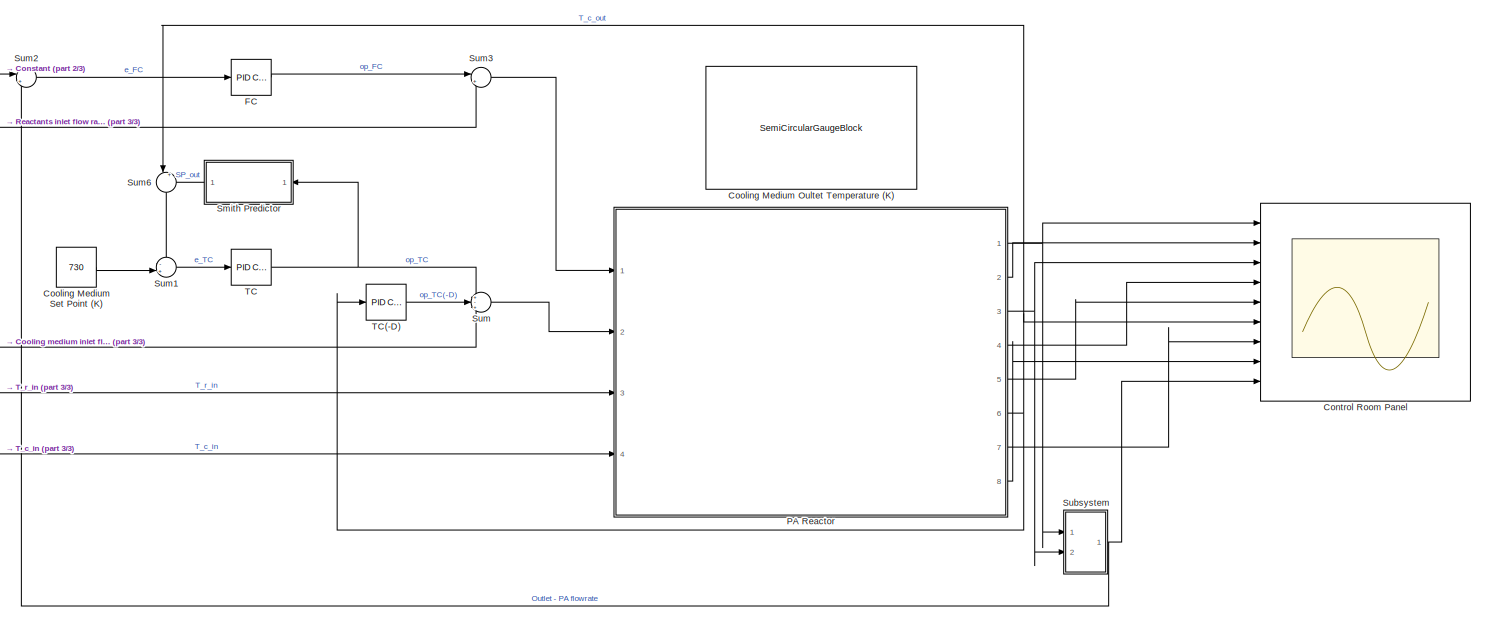
[diagram: root canvas - part 1/3, most of the canvas]
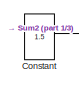
[diagram: root canvas - part 2/3, top left region]
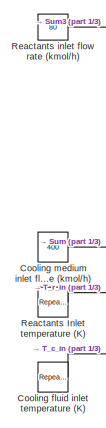
[diagram: root canvas - part 3/3, middle left region]
MODEL slx_5251da87055f
KIND model
CONFIG AbsTol = auto
CONFIG EnableMultiTasking = off
CONFIG FixedStep = auto
CONFIG MaxStep = auto
CONFIG MinStep = auto
CONFIG RelTol = 1e-3
CONFIG SampleTimeConstraint = Unconstrained
CONFIG Solver = ode2
CONFIG SolverName = ode2
CONFIG StartTime = 0
CONFIG StopTime = 120
BLOCK [Constant] Constant
  Value = 1.5
BLOCK [Scope] Control Room Panel
  Floating = off
  NumInputPorts = 9
  Ports = [9]
  ScopeSpecificationString = Simulink.scopes.TimeScopeBlockCfg('CurrentConfiguration', extmgr.ConfigurationSet(extmgr.Configuration('Core','General UI',true),extmgr.Configuration('Core','Source UI',true),extmgr.Configuration('Sources','WiredSimulink',true,'DataLoggingVariableName','ControlPanel','DataLogging',true),extmgr.Configuration('Visuals','Time Domain',true,'SerializedDisplays',{struct('MinYLimReal','64.97373','MaxYLim...<+7310ch>
BLOCK [SemiCircularGaugeBlock] Cooling Medium Oultet Temperature (K)
  ScaleMax = 780
  ScaleMin = 680
  WebBlockId = 63
BLOCK [Constant] Cooling Medium Set Point (K) 
  SampleTime = -1
  Value = 730
  VectorParams1D = off
BLOCK [Reference] Cooling fluid inlet temperature (K)  REF=simulink/Sources/Repeating
Sequence
Stair
  Ports = [0, 1]
  SourceBlock = simulink/Sources/Repeating\nSequence\nStair
  SourceProductBaseCode = SL
  SourceProductName = Simulink
  SourceType = Repeating Sequence Stair
BLOCK [Constant] Cooling medium inlet flow rate  (kmol//h)
  Value = 400
BLOCK [Reference] FC  REF=simulink/Continuous/PID Controller
  Ports = [1, 1]
  SourceBlock = simulink/Continuous/PID Controller
  SourceProductBaseCode = SL
  SourceProductName = Simulink
  SourceType = PID 1dof
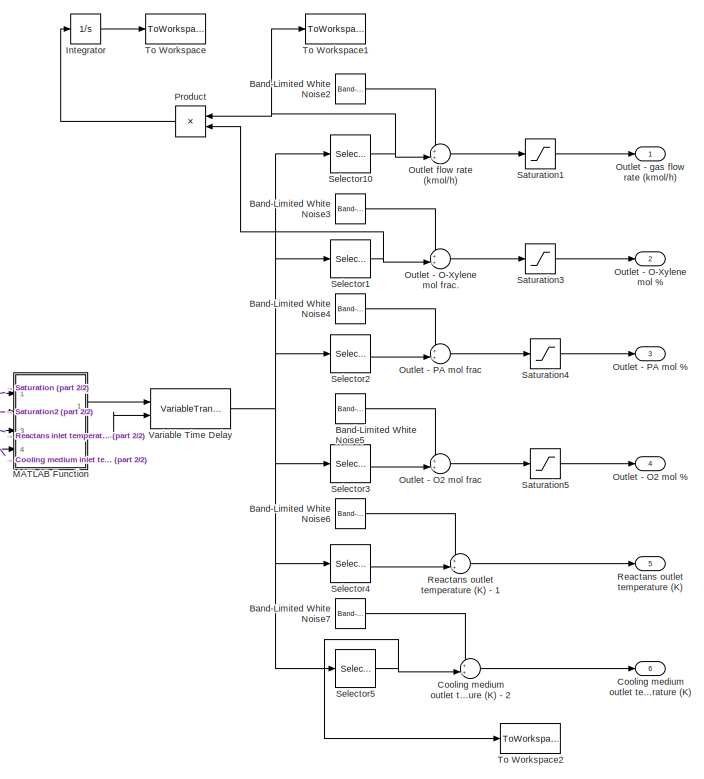
[diagram: PA Reactor - part 1/2, right side, full height]
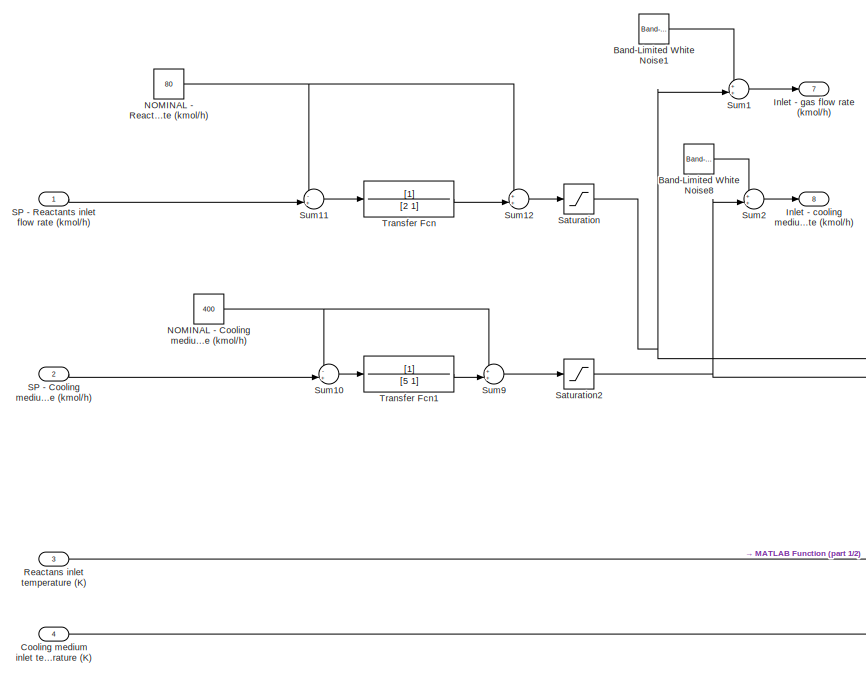
[diagram: PA Reactor - part 2/2, left side, full height]
BLOCK [SubSystem] PA Reactor
  Permissions = NoReadOrWrite
  Ports = [4, 8]
  RequestExecContextInheritance = off
BLOCK [Reference] PA Reactor/Band-Limited White Noise1  REF=simulink/Sources/Band-Limited
White Noise
  Ports = [0, 1]
  SourceBlock = simulink/Sources/Band-Limited\nWhite Noise
  SourceProductBaseCode = SL
  SourceProductName = Simulink
  SourceType = Band-Limited White Noise.
BLOCK [Reference] PA Reactor/Band-Limited White Noise2  REF=simulink/Sources/Band-Limited
White Noise
  Ports = [0, 1]
  SourceBlock = simulink/Sources/Band-Limited\nWhite Noise
  SourceProductBaseCode = SL
  SourceProductName = Simulink
  SourceType = Band-Limited White Noise.
BLOCK [Reference] PA Reactor/Band-Limited White Noise3  REF=simulink/Sources/Band-Limited
White Noise
  Ports = [0, 1]
  SourceBlock = simulink/Sources/Band-Limited\nWhite Noise
  SourceProductBaseCode = SL
  SourceProductName = Simulink
  SourceType = Band-Limited White Noise.
BLOCK [Reference] PA Reactor/Band-Limited White Noise4  REF=simulink/Sources/Band-Limited
White Noise
  Ports = [0, 1]
  SourceBlock = simulink/Sources/Band-Limited\nWhite Noise
  SourceProductBaseCode = SL
  SourceProductName = Simulink
  SourceType = Band-Limited White Noise.
BLOCK [Reference] PA Reactor/Band-Limited White Noise5  REF=simulink/Sources/Band-Limited
White Noise
  Ports = [0, 1]
  SourceBlock = simulink/Sources/Band-Limited\nWhite Noise
  SourceProductBaseCode = SL
  SourceProductName = Simulink
  SourceType = Band-Limited White Noise.
BLOCK [Reference] PA Reactor/Band-Limited White Noise6  REF=simulink/Sources/Band-Limited
White Noise
  Ports = [0, 1]
  SourceBlock = simulink/Sources/Band-Limited\nWhite Noise
  SourceProductBaseCode = SL
  SourceProductName = Simulink
  SourceType = Band-Limited White Noise.
BLOCK [Reference] PA Reactor/Band-Limited White Noise7  REF=simulink/Sources/Band-Limited
White Noise
  Ports = [0, 1]
  SourceBlock = simulink/Sources/Band-Limited\nWhite Noise
  SourceProductBaseCode = SL
  SourceProductName = Simulink
  SourceType = Band-Limited White Noise.
BLOCK [Reference] PA Reactor/Band-Limited White Noise8  REF=simulink/Sources/Band-Limited
White Noise
  Ports = [0, 1]
  SourceBlock = simulink/Sources/Band-Limited\nWhite Noise
  SourceProductBaseCode = SL
  SourceProductName = Simulink
  SourceType = Band-Limited White Noise.
BLOCK [Inport] PA Reactor/Cooling medium inlet temperature (K)
  IconDisplay = Port number
  Port = 4
BLOCK [Outport] PA Reactor/Cooling medium outlet temperature (K)
  IconDisplay = Port number
  Port = 6
BLOCK [Sum] PA Reactor/Cooling medium outlet temperature (K) - 2
  IconShape = round
  InputSameDT = off
  Inputs = ++|
  OutDataTypeStr = Inherit: Inherit via internal rule
  Ports = [2, 1]
  SaturateOnIntegerOverflow = off
BLOCK [Outport] PA Reactor/Inlet - cooling medium flow rate (kmol//h)
  IconDisplay = Port number
  Port = 8
BLOCK [Outport] PA Reactor/Inlet - gas flow rate (kmol//h)
  IconDisplay = Port number
  Port = 7
BLOCK [Integrator] PA Reactor/Integrator
  Ports = [1, 1]
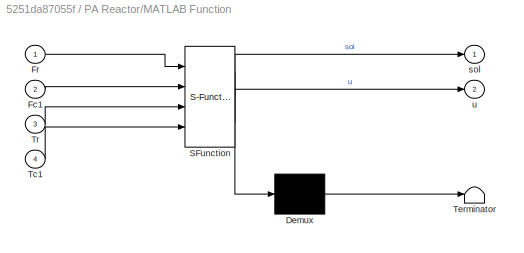
BLOCK [SubSystem] PA Reactor/MATLAB Function
  ErrorFcn = Stateflow.Translate.translate
  PermitHierarchicalResolution = ExplicitOnly
  Ports = [4, 2]
  RequestExecContextInheritance = off
  SFBlockType = MATLAB Function
  TreatAsAtomicUnit = on
BLOCK [Demux] PA Reactor/MATLAB Function/ Demux 
  Outputs = 1
  Ports = [1, 1]
BLOCK [S-Function] PA Reactor/MATLAB Function/ SFunction 
  EnableBusSupport = on
  FunctionName = sf_sfun
  PortCounts = [4 3]
  Ports = [4, 3]
  SFcnIsStateOwnerBlock = off
  SFunctionDeploymentMode = off
  Tag = Stateflow S-Function PA_Reactor_2019 2
BLOCK [Terminator] PA Reactor/MATLAB Function/ Terminator 
BLOCK [Inport] PA Reactor/MATLAB Function/Fc1
  IconDisplay = Port number
  Port = 2
BLOCK [Inport] PA Reactor/MATLAB Function/Fr
  IconDisplay = Port number
BLOCK [Inport] PA Reactor/MATLAB Function/Tc1
  IconDisplay = Port number
  Port = 4
BLOCK [Inport] PA Reactor/MATLAB Function/Tr
  IconDisplay = Port number
  Port = 3
BLOCK [Outport] PA Reactor/MATLAB Function/sol
  IconDisplay = Port number
BLOCK [Outport] PA Reactor/MATLAB Function/u
  IconDisplay = Port number
  Port = 2
BLOCK [Constant] PA Reactor/NOMINAL - Cooling medium inlet flow rate  (kmol//h)
  Value = 400
BLOCK [Constant] PA Reactor/NOMINAL - Reactants inlet flow rate (kmol//h)
  Value = 80
BLOCK [Outport] PA Reactor/Outlet - O-Xylene mol %
  IconDisplay = Port number
  Port = 2
BLOCK [Sum] PA Reactor/Outlet - O-Xylene mol frac.
  IconShape = round
  InputSameDT = off
  Inputs = ++|
  OutDataTypeStr = Inherit: Inherit via internal rule
  Ports = [2, 1]
  SaturateOnIntegerOverflow = off
BLOCK [Outport] PA Reactor/Outlet - O2 mol %
  IconDisplay = Port number
  Port = 4
BLOCK [Sum] PA Reactor/Outlet - O2 mol frac
  IconShape = round
  InputSameDT = off
  Inputs = ++|
  OutDataTypeStr = Inherit: Inherit via internal rule
  Ports = [2, 1]
  SaturateOnIntegerOverflow = off
BLOCK [Outport] PA Reactor/Outlet - PA mol %
  IconDisplay = Port number
  Port = 3
BLOCK [Sum] PA Reactor/Outlet - PA mol frac
  IconShape = round
  InputSameDT = off
  Inputs = ++|
  OutDataTypeStr = Inherit: Inherit via internal rule
  Ports = [2, 1]
  SaturateOnIntegerOverflow = off
BLOCK [Outport] PA Reactor/Outlet - gas flow rate (kmol//h)
  IconDisplay = Port number
BLOCK [Sum] PA Reactor/Outlet flow rate (kmol//h)
  IconShape = round
  InputSameDT = off
  Inputs = ++|
  OutDataTypeStr = Inherit: Inherit via internal rule
  Ports = [2, 1]
  SaturateOnIntegerOverflow = off
BLOCK [Product] PA Reactor/Product
  InputSameDT = off
  OutDataTypeStr = Inherit: Inherit via internal rule
  Ports = [2, 1]
  RndMeth = Floor
  SaturateOnIntegerOverflow = off
BLOCK [Inport] PA Reactor/Reactans inlet temperature (K)
  IconDisplay = Port number
  Port = 3
BLOCK [Outport] PA Reactor/Reactans outlet temperature (K)
  IconDisplay = Port number
  Port = 5
BLOCK [Sum] PA Reactor/Reactans outlet temperature (K) - 1
  IconShape = round
  InputSameDT = off
  Inputs = ++|
  OutDataTypeStr = Inherit: Inherit via internal rule
  Ports = [2, 1]
  SaturateOnIntegerOverflow = off
BLOCK [Inport] PA Reactor/SP -  Cooling medium inlet flow rate  (kmol//h)
  IconDisplay = Port number
  Port = 2
BLOCK [Inport] PA Reactor/SP - Reactants inlet flow rate (kmol//h)
  IconDisplay = Port number
BLOCK [Saturate] PA Reactor/Saturation
  InputPortMap = u0
  LowerLimit = 10
  Ports = [1, 1]
  UpperLimit = 250
BLOCK [Saturate] PA Reactor/Saturation1
  InputPortMap = u0
  LowerLimit = 0
  Ports = [1, 1]
  UpperLimit = 500
BLOCK [Saturate] PA Reactor/Saturation2
  InputPortMap = u0
  LowerLimit = 100
  Ports = [1, 1]
  UpperLimit = 1000
BLOCK [Saturate] PA Reactor/Saturation3
  InputPortMap = u0
  LowerLimit = 0
  Ports = [1, 1]
  UpperLimit = 100
BLOCK [Saturate] PA Reactor/Saturation4
  InputPortMap = u0
  LowerLimit = 0
  Ports = [1, 1]
  UpperLimit = 100
BLOCK [Saturate] PA Reactor/Saturation5
  InputPortMap = u0
  LowerLimit = 0
  Ports = [1, 1]
  UpperLimit = 100
BLOCK [Selector] PA Reactor/Selector1
  IndexOptions = Index vector (dialog)
  Indices = [2]
  InputPortWidth = 6
  OutputSizes = 1
  Ports = [1, 1]
BLOCK [Selector] PA Reactor/Selector10
  IndexOptions = Index vector (dialog)
  Indices = [1]
  InputPortWidth = 6
  OutputSizes = 1
  Ports = [1, 1]
BLOCK [Selector] PA Reactor/Selector2
  IndexOptions = Index vector (dialog)
  Indices = [3]
  InputPortWidth = 6
  OutputSizes = 1
  Ports = [1, 1]
BLOCK [Selector] PA Reactor/Selector3
  IndexOptions = Index vector (dialog)
  Indices = [4]
  InputPortWidth = 6
  OutputSizes = 1
  Ports = [1, 1]
BLOCK [Selector] PA Reactor/Selector4
  IndexOptions = Index vector (dialog)
  Indices = [5]
  InputPortWidth = 6
  OutputSizes = 1
  Ports = [1, 1]
BLOCK [Selector] PA Reactor/Selector5
  IndexOptions = Index vector (dialog)
  Indices = [6]
  InputPortWidth = 6
  OutputSizes = 1
  Ports = [1, 1]
BLOCK [Sum] PA Reactor/Sum1
  IconShape = round
  InputSameDT = off
  Inputs = ++|
  OutDataTypeStr = Inherit: Inherit via internal rule
  Ports = [2, 1]
  SaturateOnIntegerOverflow = off
BLOCK [Sum] PA Reactor/Sum10
  IconShape = round
  InputSameDT = off
  Inputs = -+|
  OutDataTypeStr = Inherit: Inherit via internal rule
  Ports = [2, 1]
  SaturateOnIntegerOverflow = off
BLOCK [Sum] PA Reactor/Sum11
  IconShape = round
  InputSameDT = off
  Inputs = -+|
  OutDataTypeStr = Inherit: Inherit via internal rule
  Ports = [2, 1]
  SaturateOnIntegerOverflow = off
BLOCK [Sum] PA Reactor/Sum12
  IconShape = round
  InputSameDT = off
  Inputs = ++|
  OutDataTypeStr = Inherit: Inherit via internal rule
  Ports = [2, 1]
  SaturateOnIntegerOverflow = off
BLOCK [Sum] PA Reactor/Sum2
  IconShape = round
  InputSameDT = off
  Inputs = ++|
  OutDataTypeStr = Inherit: Inherit via internal rule
  Ports = [2, 1]
  SaturateOnIntegerOverflow = off
BLOCK [Sum] PA Reactor/Sum9
  IconShape = round
  InputSameDT = off
  Inputs = ++|
  OutDataTypeStr = Inherit: Inherit via internal rule
  Ports = [2, 1]
  SaturateOnIntegerOverflow = off
BLOCK [ToWorkspace] PA Reactor/To Workspace
  FixptAsFi = on
  MaxDataPoints = inf
  Ports = [1]
  SampleTime = -1
  Save2DSignal = 3-D array (concatenate along third dimension)
  SaveFormat = Timeseries
  VariableName = P
BLOCK [ToWorkspace] PA Reactor/To Workspace1
  FixptAsFi = on
  MaxDataPoints = inf
  Ports = [1]
  SampleTime = -1
  Save2DSignal = 3-D array (concatenate along third dimension)
  SaveFormat = Timeseries
  VariableName = F
BLOCK [ToWorkspace] PA Reactor/To Workspace2
  FixptAsFi = on
  MaxDataPoints = inf
  Ports = [1]
  SampleTime = -1
  Save2DSignal = 3-D array (concatenate along third dimension)
  SaveFormat = Timeseries
  VariableName = Ct
BLOCK [TransferFcn] PA Reactor/Transfer Fcn
  Denominator = [2 1]
BLOCK [TransferFcn] PA Reactor/Transfer Fcn1
  Denominator = [5 1]
BLOCK [VariableTransportDelay] PA Reactor/Variable Time Delay
  InitialOutput = [90.36 0 0.85 2.12 711 711]
  MaximumDelay = 25
  MaximumPoints = 3072
  Ports = [2, 1]
  ZeroDelay = on
BLOCK [Reference] Reactants Inlet temperature  (K)  REF=simulink/Sources/Repeating
Sequence
Stair
  Ports = [0, 1]
  SourceBlock = simulink/Sources/Repeating\nSequence\nStair
  SourceProductBaseCode = SL
  SourceProductName = Simulink
  SourceType = Repeating Sequence Stair
BLOCK [Constant] Reactants inlet flow rate (kmol//h)
  Value = 80
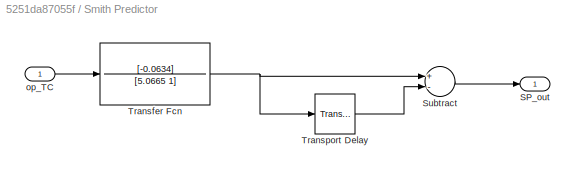
BLOCK [SubSystem] Smith Predictor
  Ports = [1, 1]
  RequestExecContextInheritance = off
BLOCK [Outport] Smith Predictor/SP_out
  IconDisplay = Port number
BLOCK [Sum] Smith Predictor/Subtract
  InputSameDT = off
  Inputs = +-
  OutDataTypeStr = Inherit: Inherit via internal rule
  Ports = [2, 1]
  SaturateOnIntegerOverflow = off
BLOCK [TransferFcn] Smith Predictor/Transfer Fcn
  Denominator = [5.0665 1]
  Numerator = [-0.0634]
BLOCK [TransportDelay] Smith Predictor/Transport Delay
  DelayTime = 16.315
  Ports = [1, 1]
BLOCK [Inport] Smith Predictor/op_TC
  IconDisplay = Port number
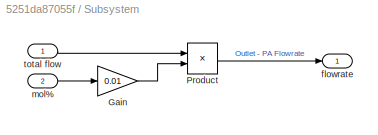
BLOCK [SubSystem] Subsystem
  Ports = [2, 1]
  RequestExecContextInheritance = off
BLOCK [Gain] Subsystem/Gain
  Gain = 0.01
  OutDataTypeStr = Inherit: Inherit via internal rule
  ParamDataTypeStr = Inherit: Inherit via internal rule
  SaturateOnIntegerOverflow = off
BLOCK [Product] Subsystem/Product
  InputSameDT = off
  OutDataTypeStr = Inherit: Inherit via internal rule
  Ports = [2, 1]
  RndMeth = Floor
  SaturateOnIntegerOverflow = off
BLOCK [Outport] Subsystem/flowrate
  IconDisplay = Port number
BLOCK [Inport] Subsystem/mol%
  IconDisplay = Port number
  Port = 2
BLOCK [Inport] Subsystem/total flow
  IconDisplay = Port number
BLOCK [Sum] Sum
  IconShape = round
  InputSameDT = off
  Inputs = +-+
  OutDataTypeStr = Inherit: Inherit via internal rule
  Ports = [3, 1]
  SaturateOnIntegerOverflow = off
BLOCK [Sum] Sum1
  IconShape = round
  InputSameDT = off
  Inputs = -+|
  OutDataTypeStr = Inherit: Inherit via internal rule
  Ports = [2, 1]
  SaturateOnIntegerOverflow = off
BLOCK [Sum] Sum2
  IconShape = round
  InputSameDT = off
  Inputs = |+-
  OutDataTypeStr = Inherit: Inherit via internal rule
  Ports = [2, 1]
  SaturateOnIntegerOverflow = off
BLOCK [Sum] Sum3
  IconShape = round
  InputSameDT = off
  Inputs = |++
  OutDataTypeStr = Inherit: Inherit via internal rule
  Ports = [2, 1]
  SaturateOnIntegerOverflow = off
BLOCK [Sum] Sum6
  IconShape = round
  InputSameDT = off
  Inputs = |++
  OutDataTypeStr = Inherit: Inherit via internal rule
  Ports = [2, 1]
  SaturateOnIntegerOverflow = off
BLOCK [Reference] TC  REF=simulink/Continuous/PID Controller
  Ports = [1, 1]
  SourceBlock = simulink/Continuous/PID Controller
  SourceProductBaseCode = SL
  SourceProductName = Simulink
  SourceType = PID 1dof
BLOCK [Reference] TC(-D)  REF=simulink/Continuous/PID Controller
  Ports = [1, 1]
  SourceBlock = simulink/Continuous/PID Controller
  SourceProductBaseCode = SL
  SourceProductName = Simulink
  SourceType = PID 1dof
LINE Constant:1 -> Sum2:1
LINE Cooling Medium Set Point (K) :1 -> Sum1:2
LINE Cooling fluid inlet temperature (K):1 -> PA Reactor:4
LINE Cooling medium inlet flow rate  (kmol//h):1 -> Sum:3
LINE FC:1 -> Sum3:1
LINE PA Reactor/Band-Limited White Noise1:1 -> PA Reactor/Sum1:1
LINE PA Reactor/Band-Limited White Noise2:1 -> PA Reactor/Outlet flow rate (kmol//h):1
LINE PA Reactor/Band-Limited White Noise3:1 -> PA Reactor/Outlet - O-Xylene mol frac.:1
LINE PA Reactor/Band-Limited White Noise4:1 -> PA Reactor/Outlet - PA mol frac:1
LINE PA Reactor/Band-Limited White Noise5:1 -> PA Reactor/Outlet - O2 mol frac:1
LINE PA Reactor/Band-Limited White Noise6:1 -> PA Reactor/Reactans outlet temperature (K) - 1:1
LINE PA Reactor/Band-Limited White Noise7:1 -> PA Reactor/Cooling medium outlet temperature (K) - 2:1
LINE PA Reactor/Band-Limited White Noise8:1 -> PA Reactor/Sum2:1
LINE PA Reactor/Cooling medium inlet temperature (K):1 -> PA Reactor/MATLAB Function:4
LINE PA Reactor/Cooling medium outlet temperature (K) - 2:1 -> PA Reactor/Cooling medium outlet temperature (K):1
LINE PA Reactor/Integrator:1 -> PA Reactor/To Workspace:1
LINE PA Reactor/MATLAB Function:1 -> PA Reactor/Variable Time Delay:1
LINE PA Reactor/MATLAB Function:2 -> PA Reactor/Variable Time Delay:2
NET PA Reactor/NOMINAL - Cooling medium inlet flow rate  (kmol//h):1 -> PA Reactor/Sum10:1, PA Reactor/Sum9:1
NET PA Reactor/NOMINAL - Reactants inlet flow rate (kmol//h):1 -> PA Reactor/Sum11:1, PA Reactor/Sum12:1
LINE PA Reactor/Outlet - O-Xylene mol frac.:1 -> PA Reactor/Saturation3:1
LINE PA Reactor/Outlet - O2 mol frac:1 -> PA Reactor/Saturation5:1
LINE PA Reactor/Outlet - PA mol frac:1 -> PA Reactor/Saturation4:1
LINE PA Reactor/Outlet flow rate (kmol//h):1 -> PA Reactor/Saturation1:1
LINE PA Reactor/Product:1 -> PA Reactor/Integrator:1
LINE PA Reactor/Reactans inlet temperature (K):1 -> PA Reactor/MATLAB Function:3
LINE PA Reactor/Reactans outlet temperature (K) - 1:1 -> PA Reactor/Reactans outlet temperature (K):1
LINE PA Reactor/SP -  Cooling medium inlet flow rate  (kmol//h):1 -> PA Reactor/Sum10:2
LINE PA Reactor/SP - Reactants inlet flow rate (kmol//h):1 -> PA Reactor/Sum11:2
LINE PA Reactor/Saturation1:1 -> PA Reactor/Outlet - gas flow rate (kmol//h):1
NET PA Reactor/Saturation2:1 -> PA Reactor/MATLAB Function:2, PA Reactor/Sum2:2
LINE PA Reactor/Saturation3:1 -> PA Reactor/Outlet - O-Xylene mol %:1
LINE PA Reactor/Saturation4:1 -> PA Reactor/Outlet - PA mol %:1
LINE PA Reactor/Saturation5:1 -> PA Reactor/Outlet - O2 mol %:1
NET PA Reactor/Saturation:1 -> PA Reactor/MATLAB Function:1, PA Reactor/Sum1:2
NET PA Reactor/Selector10:1 -> PA Reactor/Outlet flow rate (kmol//h):2, PA Reactor/Product:1, PA Reactor/To Workspace1:1
NET PA Reactor/Selector1:1 -> PA Reactor/Outlet - O-Xylene mol frac.:2, PA Reactor/Product:2
LINE PA Reactor/Selector2:1 -> PA Reactor/Outlet - PA mol frac:2
LINE PA Reactor/Selector3:1 -> PA Reactor/Outlet - O2 mol frac:2
LINE PA Reactor/Selector4:1 -> PA Reactor/Reactans outlet temperature (K) - 1:2
NET PA Reactor/Selector5:1 -> PA Reactor/Cooling medium outlet temperature (K) - 2:2, PA Reactor/To Workspace2:1
LINE PA Reactor/Sum10:1 -> PA Reactor/Transfer Fcn1:1
LINE PA Reactor/Sum11:1 -> PA Reactor/Transfer Fcn:1
LINE PA Reactor/Sum12:1 -> PA Reactor/Saturation:1
LINE PA Reactor/Sum1:1 -> PA Reactor/Inlet - gas flow rate (kmol//h):1
LINE PA Reactor/Sum2:1 -> PA Reactor/Inlet - cooling medium flow rate (kmol//h):1
LINE PA Reactor/Sum9:1 -> PA Reactor/Saturation2:1
LINE PA Reactor/Transfer Fcn1:1 -> PA Reactor/Sum9:2
LINE PA Reactor/Transfer Fcn:1 -> PA Reactor/Sum12:2
NET PA Reactor/Variable Time Delay:1 -> PA Reactor/Selector10:1, PA Reactor/Selector1:1, PA Reactor/Selector2:1, PA Reactor/Selector3:1, PA Reactor/Selector4:1, PA Reactor/Selector5:1
NET PA Reactor:1 -> Control Room Panel:1, Subsystem:1
LINE PA Reactor:2 -> Control Room Panel:2
NET PA Reactor:3 -> Control Room Panel:3, Subsystem:2
LINE PA Reactor:4 -> Control Room Panel:4
LINE PA Reactor:5 -> Control Room Panel:5
NET PA Reactor:6 -> Control Room Panel:6, Sum6:1, TC(-D):1
LINE PA Reactor:7 -> Control Room Panel:7
LINE PA Reactor:8 -> Control Room Panel:8
LINE Reactants Inlet temperature  (K):1 -> PA Reactor:3
LINE Reactants inlet flow rate (kmol//h):1 -> Sum3:2
LINE Smith Predictor/Subtract:1 -> Smith Predictor/SP_out:1
NET Smith Predictor/Transfer Fcn:1 -> Smith Predictor/Subtract:1, Smith Predictor/Transport Delay:1
LINE Smith Predictor/Transport Delay:1 -> Smith Predictor/Subtract:2
LINE Smith Predictor/op_TC:1 -> Smith Predictor/Transfer Fcn:1
LINE Smith Predictor:1 -> Sum6:2
LINE Subsystem/Gain:1 -> Subsystem/Product:2
LINE Subsystem/Product:1 -> Subsystem/flowrate:1
LINE Subsystem/mol%:1 -> Subsystem/Gain:1
LINE Subsystem/total flow:1 -> Subsystem/Product:1
NET Subsystem:1 -> Control Room Panel:9, Sum2:2
LINE Sum1:1 -> TC:1
LINE Sum2:1 -> FC:1
LINE Sum3:1 -> PA Reactor:1
LINE Sum6:1 -> Sum1:1
LINE Sum:1 -> PA Reactor:2
LINE TC(-D):1 -> Sum:2
NET TC:1 -> Smith Predictor:1, Sum:1
note: NET lines group one-source signal fan-out (src -> all destinations, sorted); 1:1 wires keep LINE
CHART PA Reactor/MATLAB Function states=1 transitions=1
  STATE_LABEL 'eML_blk_kernel()'
  STATE_LABEL 'SCRIPT:\nfunction [sol,u]= fcn(Fr, Fc1, Tr, Tc1)\n\nData_c = [24.99735 55.18696 -33.69137 7.948387 -0.136638 106.16; %O-Xylene  // Order is (1-5) A B C D E for Cp calculation (6) MW\n        24.99735 55.18696 -33.69137 7.948387 -0.136638 148.1; %Phthalic anhydride\n        24.99735 55.18696 -33.69137 7.948387 -0.136638 44.0095  % Carbon dioxide\n        25.56759 6.096130 4.054656  -2.67130 0.131021  28....<+3608ch>'
